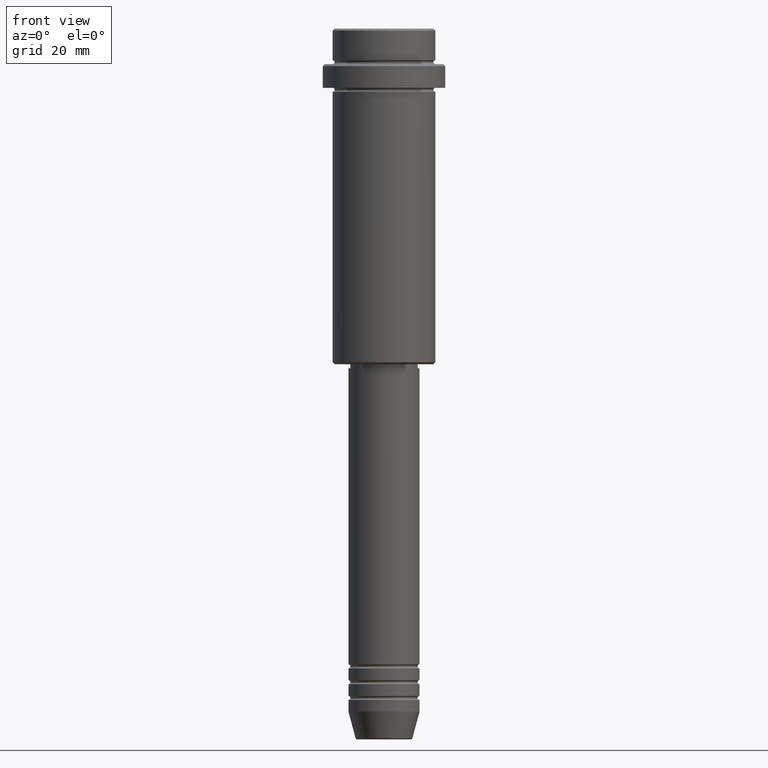
[diagram: clean part render]
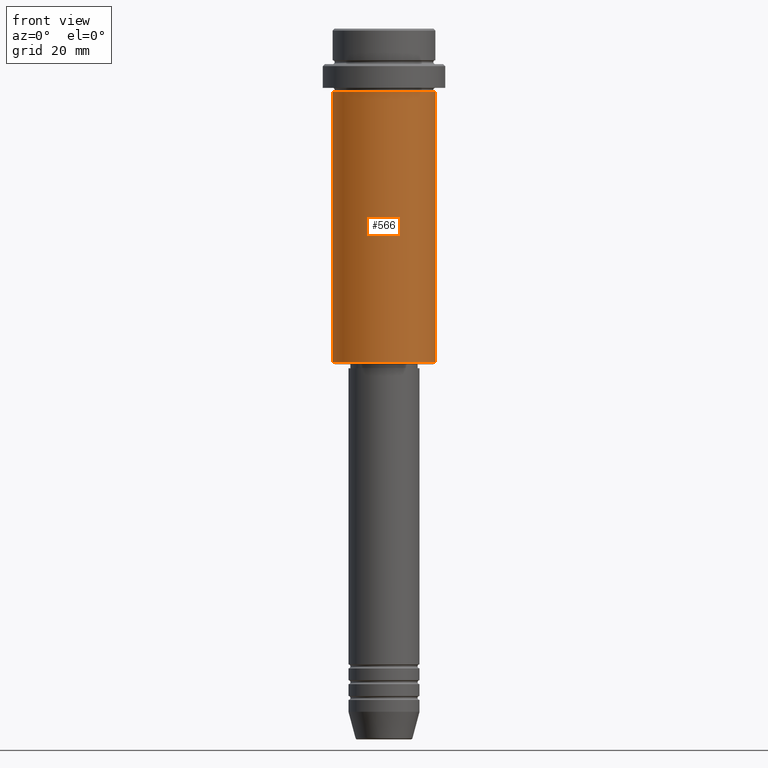
[diagram: same view with one face highlighted and labeled with its STEP entity id]
A machine part, front view. The second image highlights one B-rep face of the part: STEP entity #566.
In plain terms, the highlighted cylindrical surface (partial cylindrical patch) has radius 13 mm, axis along (-0, -0, 1).
Its self-contained STEP definition (entity closure, byte-faithful):
#32 = EDGE_CURVE ( 'NONE', #1057, #1030, #1251, .T. ) ;
#50 = DIRECTION ( 'NONE',  ( -0.000000000000000000, -0.000000000000000000, 1.000000000000000000 ) ) ;
#71 = VECTOR ( 'NONE', #259, 1000.000000000000000 ) ;
#127 = CARTESIAN_POINT ( 'NONE',  ( 0.000000000000000000, 0.000000000000000000, -84.50000000000000000 ) ) ;
#130 = CARTESIAN_POINT ( 'NONE',  ( 0.000000000000000000, 0.000000000000000000, -16.00000000000000000 ) ) ;
#133 = DIRECTION ( 'NONE',  ( -0.000000000000000000, -0.000000000000000000, 1.000000000000000000 ) ) ;
#176 = ORIENTED_EDGE ( 'NONE', *, *, #32, .F. ) ;
#185 = CIRCLE ( 'NONE', #309, 13.00000000000000000 ) ;
#192 = EDGE_LOOP ( 'NONE', ( #176, #1388, #456, #480 ) ) ;
#222 = EDGE_CURVE ( 'NONE', #1057, #1113, #229, .T. ) ;
#229 = CIRCLE ( 'NONE', #951, 13.00000000000000000 ) ;
#241 = DIRECTION ( 'NONE',  ( 1.000000000000000000, 0.000000000000000000, 0.000000000000000000 ) ) ;
#259 = DIRECTION ( 'NONE',  ( -0.000000000000000000, -0.000000000000000000, 1.000000000000000000 ) ) ;
#309 = AXIS2_PLACEMENT_3D ( 'NONE', #130, #455, #241 ) ;
#362 = CARTESIAN_POINT ( 'NONE',  ( -13.00000000000000000, 1.592040838891559095E-15, 0.000000000000000000 ) ) ;
#438 = CARTESIAN_POINT ( 'NONE',  ( 13.00000000000000000, 0.000000000000000000, -84.50000000000000000 ) ) ;
#455 = DIRECTION ( 'NONE',  ( -0.000000000000000000, -0.000000000000000000, 1.000000000000000000 ) ) ;
#456 = ORIENTED_EDGE ( 'NONE', *, *, #597, .T. ) ;
#480 = ORIENTED_EDGE ( 'NONE', *, *, #880, .F. ) ;
#481 = CARTESIAN_POINT ( 'NONE',  ( 13.00000000000000000, 0.000000000000000000, -16.00000000000000000 ) ) ;
#566 = ADVANCED_FACE ( 'NONE', ( #679 ), #698, .T. ) ;
#576 = CARTESIAN_POINT ( 'NONE',  ( 0.000000000000000000, 0.000000000000000000, 0.000000000000000000 ) ) ;
#595 = LINE ( 'NONE', #1028, #1416 ) ;
#596 = VERTEX_POINT ( 'NONE', #481 ) ;
#597 = EDGE_CURVE ( 'NONE', #1113, #596, #595, .T. ) ;
#624 = CARTESIAN_POINT ( 'NONE',  ( -13.00000000000000000, 1.592040838891559095E-15, -16.00000000000000000 ) ) ;
#679 = FACE_OUTER_BOUND ( 'NONE', #192, .T. ) ;
#698 = CYLINDRICAL_SURFACE ( 'NONE', #1178, 13.00000000000000000 ) ;
#880 = EDGE_CURVE ( 'NONE', #1030, #596, #185, .T. ) ;
#882 = CARTESIAN_POINT ( 'NONE',  ( -13.00000000000000000, 1.592040838891559095E-15, -84.50000000000000000 ) ) ;
#951 = AXIS2_PLACEMENT_3D ( 'NONE', #127, #133, #1109 ) ;
#1028 = CARTESIAN_POINT ( 'NONE',  ( 13.00000000000000000, 0.000000000000000000, 0.000000000000000000 ) ) ;
#1030 = VERTEX_POINT ( 'NONE', #624 ) ;
#1057 = VERTEX_POINT ( 'NONE', #882 ) ;
#1109 = DIRECTION ( 'NONE',  ( -1.000000000000000000, 0.000000000000000000, 0.000000000000000000 ) ) ;
#1113 = VERTEX_POINT ( 'NONE', #438 ) ;
#1178 = AXIS2_PLACEMENT_3D ( 'NONE', #576, #50, #1345 ) ;
#1217 = DIRECTION ( 'NONE',  ( -0.000000000000000000, -0.000000000000000000, 1.000000000000000000 ) ) ;
#1251 = LINE ( 'NONE', #362, #71 ) ;
#1345 = DIRECTION ( 'NONE',  ( 1.000000000000000000, 0.000000000000000000, 0.000000000000000000 ) ) ;
#1388 = ORIENTED_EDGE ( 'NONE', *, *, #222, .T. ) ;
#1416 = VECTOR ( 'NONE', #1217, 1000.000000000000000 ) ;